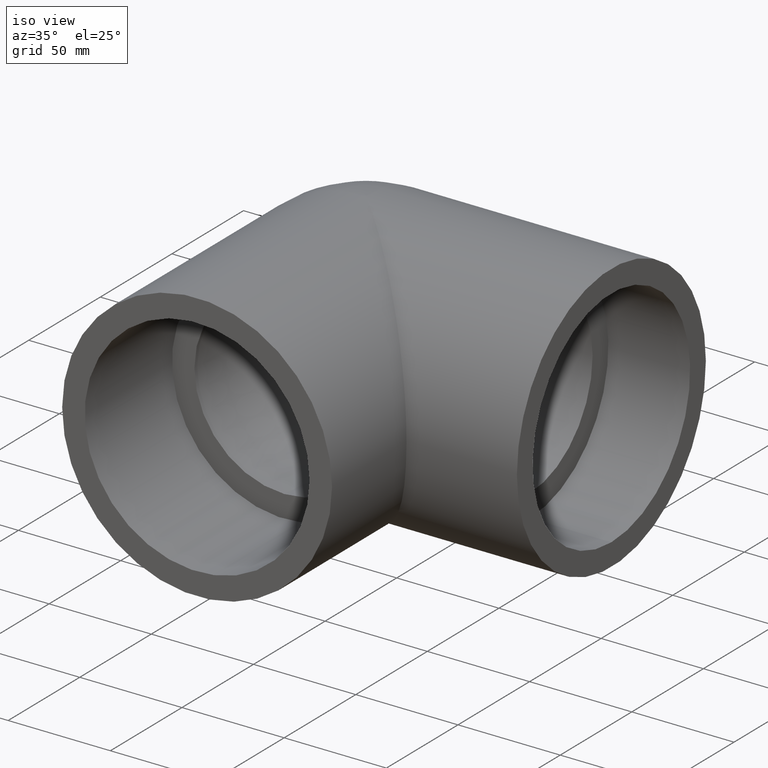
[diagram: clean part render]
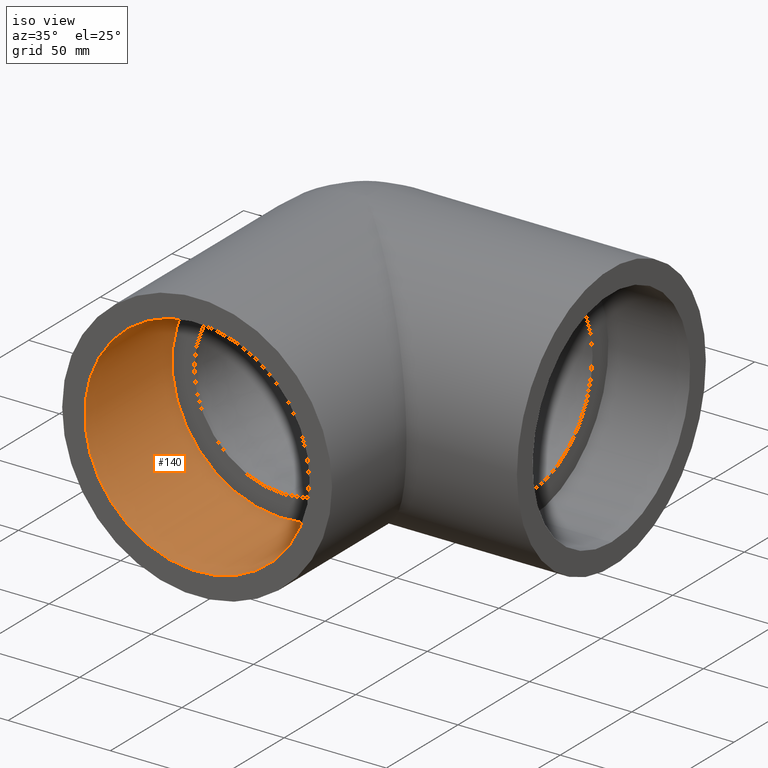
[diagram: same view with one face highlighted and labeled with its STEP entity id]
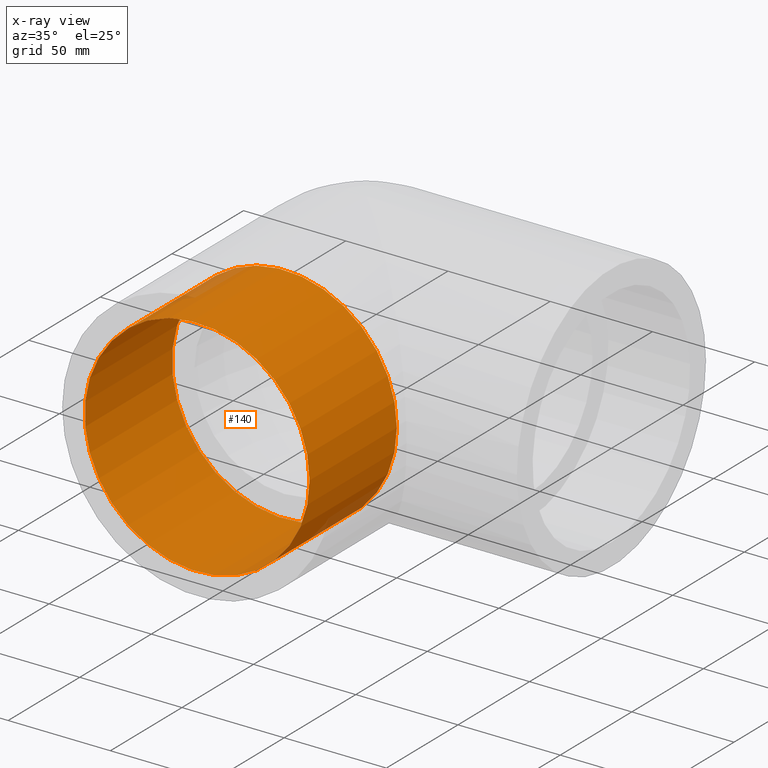
[diagram: x-ray of the same camera — body ghosted, the highlighted face saturated]
A machine part, iso view. The second image highlights one B-rep face of the part: STEP entity #140.
The next image is the same camera in x-ray: the body ghosted, the highlighted face saturated — about 2% of this face is hidden behind the body in this view.
In plain terms, the highlighted cylindrical surface (bore or boss wall) has radius 55 mm, axis along (-0, 1, 0).
Its self-contained STEP definition (entity closure, byte-faithful):
#25=FACE_BOUND('',#52,.T.);
#36=FACE_OUTER_BOUND('',#51,.T.);
#51=EDGE_LOOP('',(#111));
#52=EDGE_LOOP('',(#112));
#72=CIRCLE('',#159,55.);
#73=CIRCLE('',#160,55.);
#84=VERTEX_POINT('',#241);
#85=VERTEX_POINT('',#243);
#96=EDGE_CURVE('',#84,#84,#72,.T.);
#97=EDGE_CURVE('',#85,#85,#73,.T.);
#111=ORIENTED_EDGE('',*,*,#96,.T.);
#112=ORIENTED_EDGE('',*,*,#97,.F.);
#133=CYLINDRICAL_SURFACE('',#158,55.);
#140=ADVANCED_FACE('',(#36,#25),#133,.F.);
#158=AXIS2_PLACEMENT_3D('',#240,#192,#193);
#159=AXIS2_PLACEMENT_3D('',#242,#194,#195);
#160=AXIS2_PLACEMENT_3D('',#244,#196,#197);
#192=DIRECTION('center_axis',(-1.45603019622971E-16,1.,0.));
#193=DIRECTION('ref_axis',(-1.,-1.45603019622971E-16,0.));
#194=DIRECTION('center_axis',(-1.22464679914735E-16,1.,0.));
#195=DIRECTION('ref_axis',(-1.,-1.22464679914735E-16,0.));
#196=DIRECTION('center_axis',(-1.22464679914735E-16,1.,0.));
#197=DIRECTION('ref_axis',(-1.,-1.45603019622971E-16,0.));
#240=CARTESIAN_POINT('Origin',(1.44508322299388E-14,-118.,0.));
#241=CARTESIAN_POINT('',(55.,-57.,6.73555739531044E-15));
#242=CARTESIAN_POINT('Origin',(5.56904803293751E-15,-57.,0.));
#243=CARTESIAN_POINT('',(55.,-118.,6.73555739531044E-15));
#244=CARTESIAN_POINT('Origin',(1.44508322299388E-14,-118.,0.));